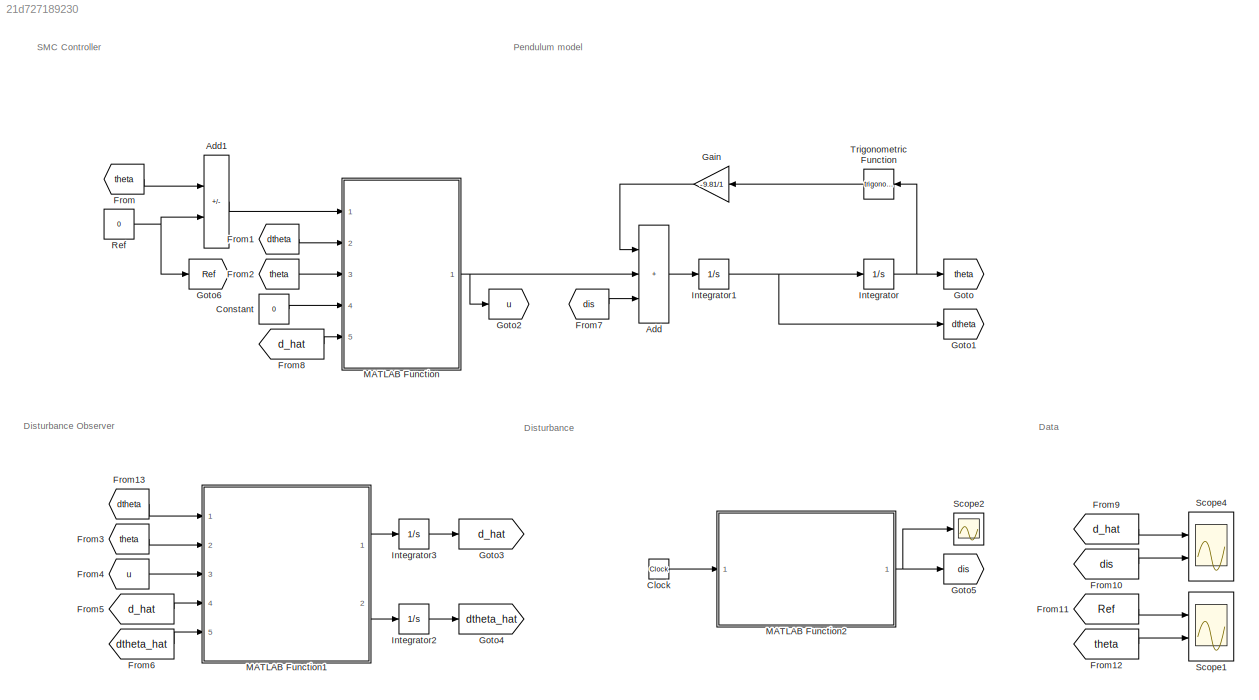
MODEL slx_21d727189230
KIND model
CONFIG AbsTol = auto
CONFIG EnableMultiTasking = off
CONFIG FixedStep = auto
CONFIG MaxStep = 0.001
CONFIG MinStep = auto
CONFIG RelTol = 1e-3
CONFIG SampleTimeConstraint = Unconstrained
CONFIG Solver = VariableStepAuto
CONFIG SolverName = VariableStepAuto
CONFIG StartTime = 0.0
CONFIG StopTime = 40
BLOCK [Sum] Add
  IconShape = rectangular
  Inputs = +++
  Ports = [3, 1]
BLOCK [Sum] Add1
  IconShape = rectangular
  Inputs = +-
  Ports = [2, 1]
BLOCK [Clock] Clock
BLOCK [Constant] Constant
  SampleTime = -1
  Value = 0
BLOCK [From] From
  GotoTag = theta
BLOCK [From] From1
  GotoTag = dtheta
BLOCK [From] From10
  GotoTag = dis
BLOCK [From] From11
  GotoTag = Ref
BLOCK [From] From12
  GotoTag = theta
BLOCK [From] From13
  GotoTag = dtheta
BLOCK [From] From2
  GotoTag = theta
BLOCK [From] From3
  GotoTag = theta
BLOCK [From] From4
  GotoTag = u
BLOCK [From] From5
  GotoTag = d_hat
BLOCK [From] From6
  GotoTag = dtheta_hat
BLOCK [From] From7
  GotoTag = dis
BLOCK [From] From8
  GotoTag = d_hat
BLOCK [From] From9
  GotoTag = d_hat
BLOCK [Gain] Gain
  Gain = -9.81/1
BLOCK [Goto] Goto
  GotoTag = theta
BLOCK [Goto] Goto1
  GotoTag = dtheta
BLOCK [Goto] Goto2
  GotoTag = u
BLOCK [Goto] Goto3
  GotoTag = d_hat
BLOCK [Goto] Goto4
  GotoTag = dtheta_hat
BLOCK [Goto] Goto5
  GotoTag = dis
BLOCK [Goto] Goto6
  GotoTag = Ref
BLOCK [Integrator] Integrator
  InitialCondition = 0.5
  Ports = [1, 1]
BLOCK [Integrator] Integrator1
  Ports = [1, 1]
BLOCK [Integrator] Integrator2
  InitialCondition = 0.5
  Ports = [1, 1]
BLOCK [Integrator] Integrator3
  Ports = [1, 1]
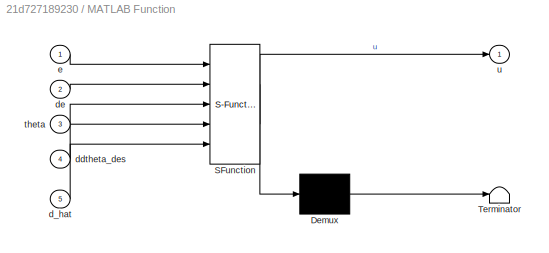
BLOCK [SubSystem] MATLAB Function
  ErrorFcn = Stateflow.Translate.translate
  PermitHierarchicalResolution = ExplicitOnly
  Ports = [5, 1]
  RequestExecContextInheritance = off
  SFBlockType = MATLAB Function
  TreatAsAtomicUnit = on
BLOCK [Demux] MATLAB Function/ Demux 
  Outputs = 1
  Ports = [1, 1]
BLOCK [S-Function] MATLAB Function/ SFunction 
  EnableBusSupport = on
  FunctionName = sf_sfun
  PortCounts = [5 2]
  Ports = [5, 2]
  SFcnIsStateOwnerBlock = off
  SFunctionDeploymentMode = off
  Tag = Stateflow S-Function Pendulum_SMC_18a 2
BLOCK [Terminator] MATLAB Function/ Terminator 
BLOCK [Inport] MATLAB Function/d_hat
  Port = 5
BLOCK [Inport] MATLAB Function/ddtheta_des
  Port = 4
BLOCK [Inport] MATLAB Function/de
  Port = 2
BLOCK [Inport] MATLAB Function/e
BLOCK [Inport] MATLAB Function/theta
  Port = 3
BLOCK [Outport] MATLAB Function/u
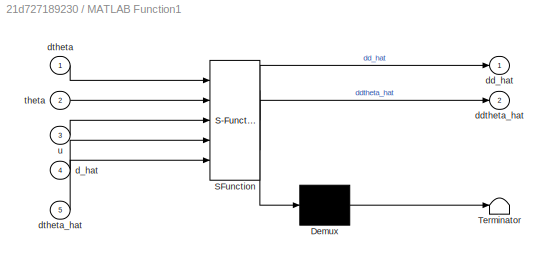
BLOCK [SubSystem] MATLAB Function1
  ErrorFcn = Stateflow.Translate.translate
  PermitHierarchicalResolution = ExplicitOnly
  Ports = [5, 2]
  RequestExecContextInheritance = off
  SFBlockType = MATLAB Function
  TreatAsAtomicUnit = on
BLOCK [Demux] MATLAB Function1/ Demux 
  Outputs = 1
  Ports = [1, 1]
BLOCK [S-Function] MATLAB Function1/ SFunction 
  EnableBusSupport = on
  FunctionName = sf_sfun
  PortCounts = [5 3]
  Ports = [5, 3]
  SFcnIsStateOwnerBlock = off
  SFunctionDeploymentMode = off
  Tag = Stateflow S-Function Pendulum_SMC_18a 1
BLOCK [Terminator] MATLAB Function1/ Terminator 
BLOCK [Inport] MATLAB Function1/d_hat
  Port = 4
BLOCK [Outport] MATLAB Function1/dd_hat
BLOCK [Outport] MATLAB Function1/ddtheta_hat
  Port = 2
BLOCK [Inport] MATLAB Function1/dtheta
BLOCK [Inport] MATLAB Function1/dtheta_hat
  Port = 5
BLOCK [Inport] MATLAB Function1/theta
  Port = 2
BLOCK [Inport] MATLAB Function1/u
  Port = 3
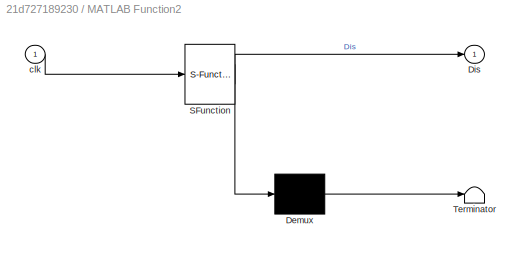
BLOCK [SubSystem] MATLAB Function2
  ErrorFcn = Stateflow.Translate.translate
  PermitHierarchicalResolution = ExplicitOnly
  Ports = [1, 1]
  RequestExecContextInheritance = off
  SFBlockType = MATLAB Function
  TreatAsAtomicUnit = on
BLOCK [Demux] MATLAB Function2/ Demux 
  Outputs = 1
  Ports = [1, 1]
BLOCK [S-Function] MATLAB Function2/ SFunction 
  EnableBusSupport = on
  FunctionName = sf_sfun
  PortCounts = [1 2]
  Ports = [1, 2]
  SFcnIsStateOwnerBlock = off
  SFunctionDeploymentMode = off
  Tag = Stateflow S-Function Pendulum_SMC_18a 3
BLOCK [Terminator] MATLAB Function2/ Terminator 
BLOCK [Outport] MATLAB Function2/Dis
BLOCK [Inport] MATLAB Function2/clk
BLOCK [Constant] Ref
  SampleTime = -1
  Value = 0
BLOCK [Scope] Scope1
  Floating = off
  NumInputPorts = 2
  Ports = [2]
  ScopeSpecificationString = Simulink.scopes.TimeScopeBlockCfg('CurrentConfiguration', extmgr.ConfigurationSet(extmgr.Configuration('Core','General UI',true),extmgr.Configuration('Core','Source UI',true),extmgr.Configuration('Sources','WiredSimulink',true,'DataLoggingVariableName','ScopeData1'),extmgr.Configuration('Visuals','Time Domain',true,'SerializedDisplays',{struct('MinYLimReal','-0.06256','MaxYLimReal','0.56251','YLab...<+1405ch>
BLOCK [Scope] Scope2
  Floating = off
  NumInputPorts = 1
  Ports = [1]
  ScopeSpecificationString = Simulink.scopes.TimeScopeBlockCfg('CurrentConfiguration', extmgr.ConfigurationSet(extmgr.Configuration('Core','General UI',true),extmgr.Configuration('Core','Source UI',true),extmgr.Configuration('Sources','WiredSimulink',true,'DataLoggingVariableName','ScopeData2'),extmgr.Configuration('Visuals','Time Domain',true,'SerializedDisplays',{struct('MinYLimReal','-0.73865','MaxYLimReal','0.73865','YLab...<+1405ch>
BLOCK [Scope] Scope4
  Floating = off
  NumInputPorts = 2
  Ports = [2]
  ScopeSpecificationString = Simulink.scopes.TimeScopeBlockCfg('CurrentConfiguration', extmgr.ConfigurationSet(extmgr.Configuration('Core','General UI',true),extmgr.Configuration('Core','Source UI',true),extmgr.Configuration('Sources','WiredSimulink',true,'DataLoggingVariableName','ScopeData4'),extmgr.Configuration('Visuals','Time Domain',true,'SerializedDisplays',{struct('MinYLimReal','-0.73865','MaxYLimReal','0.73865','YLab...<+1434ch>
BLOCK [Trigonometry] Trigonometric Function
  Ports = [1, 1]
ANNOTATION (root): Data
ANNOTATION (root): Disturbance
ANNOTATION (root): Disturbance Observer
ANNOTATION (root): Pendulum model
ANNOTATION (root): SMC Controller
LINE Add1:1 -> MATLAB Function:1
LINE Add:1 -> Integrator1:1
LINE Clock:1 -> MATLAB Function2:1
LINE Constant:1 -> MATLAB Function:4
LINE From10:1 -> Scope4:2
LINE From11:1 -> Scope1:1
LINE From12:1 -> Scope1:2
LINE From13:1 -> MATLAB Function1:1
LINE From1:1 -> MATLAB Function:2
LINE From2:1 -> MATLAB Function:3
LINE From3:1 -> MATLAB Function1:2
LINE From4:1 -> MATLAB Function1:3
LINE From5:1 -> MATLAB Function1:4
LINE From6:1 -> MATLAB Function1:5
LINE From7:1 -> Add:3
LINE From8:1 -> MATLAB Function:5
LINE From9:1 -> Scope4:1
LINE From:1 -> Add1:1
LINE Gain:1 -> Add:1
NET Integrator1:1 -> Goto1:1, Integrator:1
LINE Integrator2:1 -> Goto4:1
LINE Integrator3:1 -> Goto3:1
NET Integrator:1 -> Goto:1, Trigonometric Function:1
LINE MATLAB Function1:1 -> Integrator3:1
LINE MATLAB Function1:2 -> Integrator2:1
NET MATLAB Function2:1 -> Goto5:1, Scope2:1
NET MATLAB Function:1 -> Add:2, Goto2:1
NET Ref:1 -> Add1:2, Goto6:1
LINE Trigonometric Function:1 -> Gain:1
note: NET lines group one-source signal fan-out (src -> all destinations, sorted); 1:1 wires keep LINE
CHART MATLAB Function1 states=1 transitions=1
  STATE_LABEL 'eML_blk_kernel()'
  STATE_LABEL 'SCRIPT:\nfunction [dd_hat,ddtheta_hat] = Observer(dtheta,theta,u,d_hat,dtheta_hat)\n%%%%%%%%%%%%%%%%%% params %%%%%%%%%%%%%%%%%%%%%\ng=9.81;    l=1;\nlambda1=3; lambda2=1; sigma1=0.01;\n%%%%%%%%%%%%%%%%%%%%%%%%%%%%%%%%%%%%%%%%%%%%%%%\n\nm=-lambda1*sqrt(abs(dtheta_hat-dtheta))*sign(dtheta_hat-dtheta)+d_hat;\ndd_hat= -lambda2*sign(d_hat-m)-sigma1*d_hat;\nddtheta_hat=(-g/l)*sin(theta)+u+m;\n\n'
CHART MATLAB Function states=1 transitions=1
  STATE_LABEL 'eML_blk_kernel()'
  STATE_LABEL 'SCRIPT:\nfunction u = Controller(e,de,theta, ddtheta_des, d_hat)\n\n%%%%%%%%%%%%%%%%%%%%%%%%%%%%%%%% Params %%%%%%%%%%%%%%%%%%%%%%%%%%%%%%%%%%%%%% \nlambda=1;nu=0.4;g=9.81;l=1;epsilon=0.01;                                    \n%%%%%%%%%%%%%%%%%%%%%%%%%%%%%%%%%%%%%%%%%%%%%%%%%%%%%%%%%%%%%%%%%%%%%%%%%%%%%%\n\nS=de+lambda*e;\nu =(g/l)*sin(theta)+ddtheta_des-lambda*de-nu*tanh(S/epsilon)-d_hat;\n\n\n%%%%%%%%%%%%%...<+547ch>'
CHART MATLAB Function2 states=1 transitions=1
  STATE_LABEL 'eML_blk_kernel()'
  STATE_LABEL 'SCRIPT:\nfunction Dis = Disturbance(clk)\n\nDis = 0.2*sin(0.4*clk)+0.4*sin(clk);\n'
